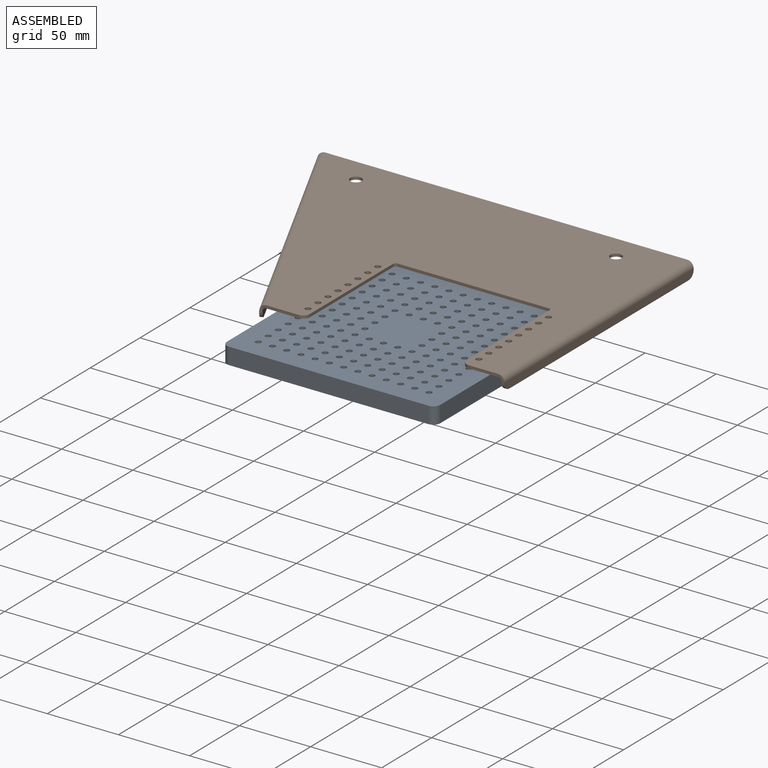
[diagram: assembled view]
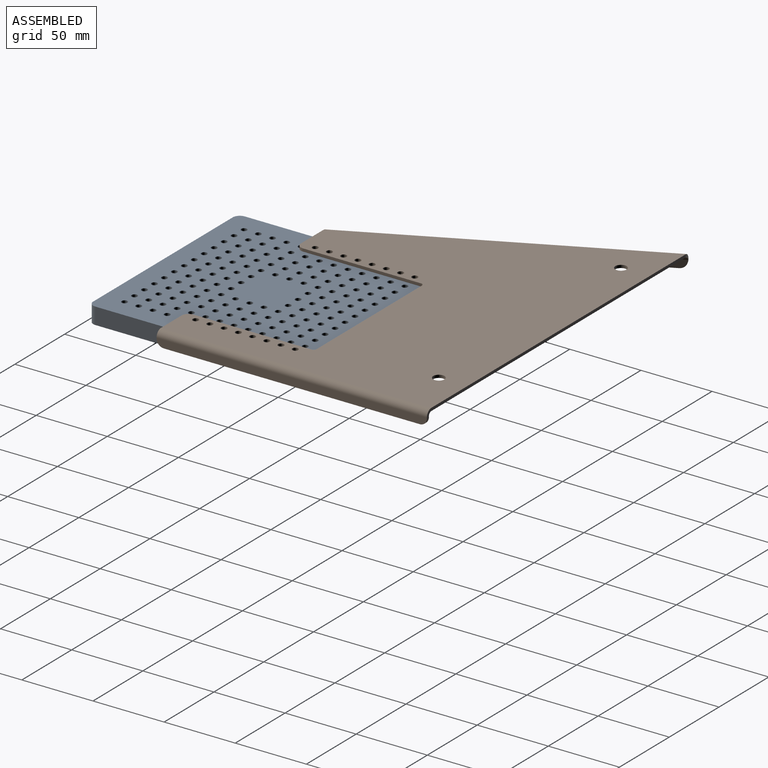
[diagram: assembled view, second angle]
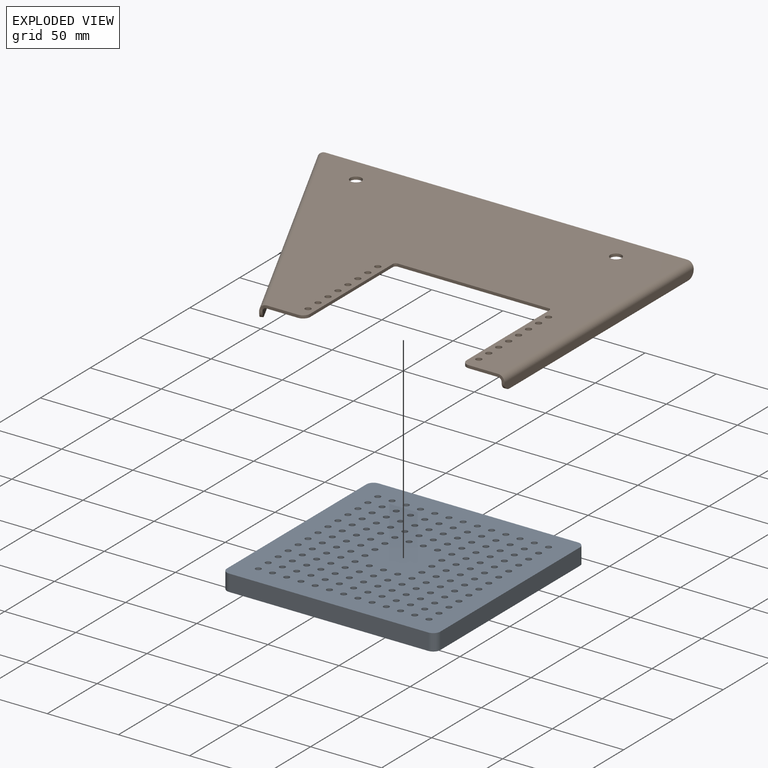
[diagram: exploded view]
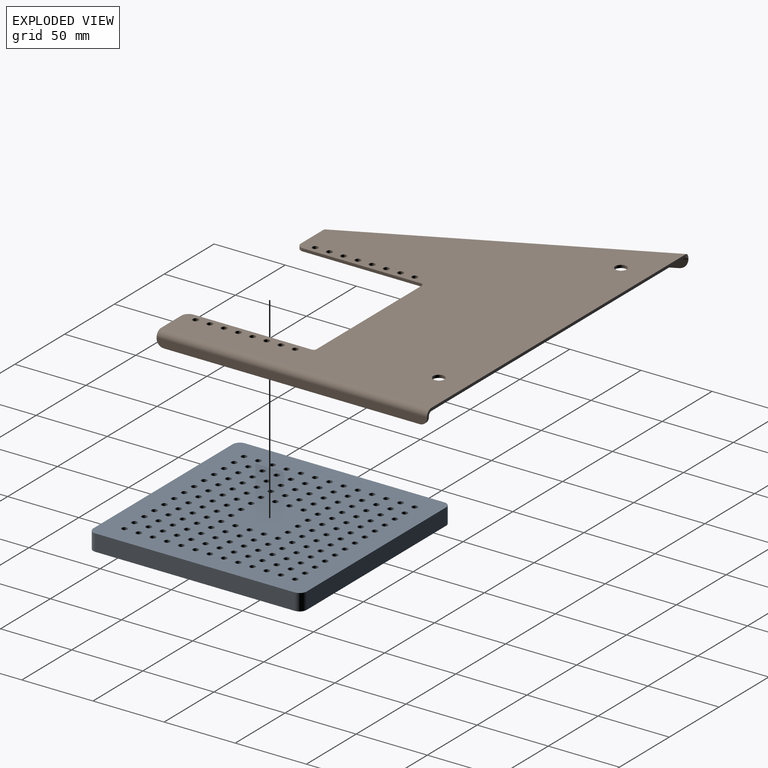
[diagram: exploded view, second angle]
ASSEMBLY  parts=2 mates=2
PART A: 170 faces, bbox 150x150x11.7 mm
  f0: plane 140x11.7mm, normal (0,1,0), area 1638mm2, adj f4,f5,f166,f169
  f1: plane 140x11.7mm, normal (-1,0,0), area 1638mm2, adj f4,f5,f166,f167
  f2: plane 140x11.7mm, normal (0,-1,0), area 1638mm2, adj f4,f5,f167,f168
  f3: plane 140x11.7mm, normal (1,0,0), area 1638mm2, adj f4,f5,f168,f169
  f4: plane 150x150mm, normal (0,0,1), area 20467.9mm2, adj f0,f1,f2,f3,f6,f7,f8,f9
  f5: plane 150x150mm, normal (0,0,-1), area 20467.9mm2, adj f0,f1,f2,f3,f6,f7,f8,f9
  f6: cylinder r=2mm len=11.7mm, axis (0,0,1), area 147mm2, adj f4,f5
  f7: cylinder r=2mm len=11.7mm, axis (0,0,1), area 147mm2, adj f4,f5
  f8: cylinder r=2mm len=11.7mm, axis (0,0,1), area 147mm2, adj f4,f5
  f9: cylinder r=2mm len=11.7mm, axis (0,0,1), area 147mm2, adj f4,f5
  f10: cylinder r=2mm len=11.7mm, axis (0,0,1), area 147mm2, adj f4,f5
  f11: cylinder r=2mm len=11.7mm, axis (0,0,1), area 147mm2, adj f4,f5
  f12: cylinder r=2mm len=11.7mm, axis (0,0,1), area 147mm2, adj f4,f5
  f13: cylinder r=2mm len=11.7mm, axis (0,0,1), area 147mm2, adj f4,f5
  f14: cylinder r=2mm len=11.7mm, axis (0,0,1), area 147mm2, adj f4,f5
  f15: cylinder r=2mm len=11.7mm, axis (0,0,1), area 147mm2, adj f4,f5
  f16: cylinder r=2mm len=11.7mm, axis (0,0,1), area 147mm2, adj f4,f5
  f17: cylinder r=2mm len=11.7mm, axis (0,0,1), area 147mm2, adj f4,f5
  f18: cylinder r=2mm len=11.7mm, axis (0,0,1), area 147mm2, adj f4,f5
  f19: cylinder r=2mm len=11.7mm, axis (0,0,1), area 147mm2, adj f4,f5
  f20: cylinder r=2mm len=11.7mm, axis (0,0,1), area 147mm2, adj f4,f5
  f21: cylinder r=2mm len=11.7mm, axis (0,0,1), area 147mm2, adj f4,f5
  f22: cylinder r=2mm len=11.7mm, axis (0,0,1), area 147mm2, adj f4,f5
  f23: cylinder r=2mm len=11.7mm, axis (0,0,1), area 147mm2, adj f4,f5
  f24: cylinder r=2mm len=11.7mm, axis (0,0,1), area 147mm2, adj f4,f5
  f25: cylinder r=2mm len=11.7mm, axis (0,0,1), area 147mm2, adj f4,f5
  f26: cylinder r=2mm len=11.7mm, axis (0,0,1), area 147mm2, adj f4,f5
  f27: cylinder r=2mm len=11.7mm, axis (0,0,1), area 147mm2, adj f4,f5
  f28: cylinder r=2mm len=11.7mm, axis (0,0,1), area 147mm2, adj f4,f5
  f29: cylinder r=2mm len=11.7mm, axis (0,0,1), area 147mm2, adj f4,f5
  f30: cylinder r=2mm len=11.7mm, axis (0,0,1), area 147mm2, adj f4,f5
  f31: cylinder r=2mm len=11.7mm, axis (0,0,1), area 147mm2, adj f4,f5
  f32: cylinder r=2mm len=11.7mm, axis (0,0,1), area 147mm2, adj f4,f5
  f33: cylinder r=2mm len=11.7mm, axis (0,0,1), area 147mm2, adj f4,f5
  f34: cylinder r=2mm len=11.7mm, axis (0,0,1), area 147mm2, adj f4,f5
  f35: cylinder r=2mm len=11.7mm, axis (0,0,1), area 147mm2, adj f4,f5
  f36: cylinder r=2mm len=11.7mm, axis (0,0,1), area 147mm2, adj f4,f5
  f37: cylinder r=2mm len=11.7mm, axis (0,0,1), area 147mm2, adj f4,f5
  f38: cylinder r=2mm len=11.7mm, axis (0,0,1), area 147mm2, adj f4,f5
  f39: cylinder r=2mm len=11.7mm, axis (0,0,1), area 147mm2, adj f4,f5
  f40: cylinder r=2mm len=11.7mm, axis (0,0,1), area 147mm2, adj f4,f5
  f41: cylinder r=2mm len=11.7mm, axis (0,0,1), area 147mm2, adj f4,f5
  f42: cylinder r=2mm len=11.7mm, axis (0,0,1), area 147mm2, adj f4,f5
  f43: cylinder r=2mm len=11.7mm, axis (0,0,1), area 147mm2, adj f4,f5
  f44: cylinder r=2mm len=11.7mm, axis (0,0,1), area 147mm2, adj f4,f5
  f45: cylinder r=2mm len=11.7mm, axis (0,0,1), area 147mm2, adj f4,f5
  f46: cylinder r=2mm len=11.7mm, axis (0,0,1), area 147mm2, adj f4,f5
  f47: cylinder r=2mm len=11.7mm, axis (0,0,1), area 147mm2, adj f4,f5
  f48: cylinder r=2mm len=11.7mm, axis (0,0,1), area 147mm2, adj f4,f5
  f49: cylinder r=2mm len=11.7mm, axis (0,0,1), area 147mm2, adj f4,f5
  f50: cylinder r=2mm len=11.7mm, axis (0,0,1), area 147mm2, adj f4,f5
  f51: cylinder r=2mm len=11.7mm, axis (0,0,1), area 147mm2, adj f4,f5
  f52: cylinder r=2mm len=11.7mm, axis (0,0,1), area 147mm2, adj f4,f5
  f53: cylinder r=2mm len=11.7mm, axis (0,0,1), area 147mm2, adj f4,f5
  f54: cylinder r=2mm len=11.7mm, axis (0,0,1), area 147mm2, adj f4,f5
  f55: cylinder r=2mm len=11.7mm, axis (0,0,1), area 147mm2, adj f4,f5
  f56: cylinder r=2mm len=11.7mm, axis (0,0,1), area 147mm2, adj f4,f5
  f57: cylinder r=2mm len=11.7mm, axis (0,0,1), area 147mm2, adj f4,f5
  f58: cylinder r=2mm len=11.7mm, axis (0,0,1), area 147mm2, adj f4,f5
  f59: cylinder r=2mm len=11.7mm, axis (0,0,1), area 147mm2, adj f4,f5
  f60: cylinder r=2mm len=11.7mm, axis (0,0,1), area 147mm2, adj f4,f5
  f61: cylinder r=2mm len=11.7mm, axis (0,0,1), area 147mm2, adj f4,f5
  f62: cylinder r=2mm len=11.7mm, axis (0,0,1), area 147mm2, adj f4,f5
  f63: cylinder r=2mm len=11.7mm, axis (0,0,1), area 147mm2, adj f4,f5
  f64: cylinder r=2mm len=11.7mm, axis (0,0,1), area 147mm2, adj f4,f5
  f65: cylinder r=2mm len=11.7mm, axis (0,0,1), area 147mm2, adj f4,f5
  f66: cylinder r=2mm len=11.7mm, axis (0,0,1), area 147mm2, adj f4,f5
  f67: cylinder r=2mm len=11.7mm, axis (0,0,1), area 147mm2, adj f4,f5
  f68: cylinder r=2mm len=11.7mm, axis (0,0,1), area 147mm2, adj f4,f5
  f69: cylinder r=2mm len=11.7mm, axis (0,0,1), area 147mm2, adj f4,f5
  f70: cylinder r=2mm len=11.7mm, axis (0,0,1), area 147mm2, adj f4,f5
  f71: cylinder r=2mm len=11.7mm, axis (0,0,1), area 147mm2, adj f4,f5
  f72: cylinder r=2mm len=11.7mm, axis (0,0,1), area 147mm2, adj f4,f5
  f73: cylinder r=2mm len=11.7mm, axis (0,0,1), area 147mm2, adj f4,f5
  f74: cylinder r=2mm len=11.7mm, axis (0,0,1), area 147mm2, adj f4,f5
  f75: cylinder r=2mm len=11.7mm, axis (0,0,1), area 147mm2, adj f4,f5
  f76: cylinder r=2mm len=11.7mm, axis (0,0,1), area 147mm2, adj f4,f5
  f77: cylinder r=2mm len=11.7mm, axis (0,0,1), area 147mm2, adj f4,f5
  f78: cylinder r=2mm len=11.7mm, axis (0,0,1), area 147mm2, adj f4,f5
  f79: cylinder r=2mm len=11.7mm, axis (0,0,1), area 147mm2, adj f4,f5
  f80: cylinder r=2mm len=11.7mm, axis (0,0,1), area 147mm2, adj f4,f5
  f81: cylinder r=2mm len=11.7mm, axis (0,0,1), area 147mm2, adj f4,f5
  f82: cylinder r=2mm len=11.7mm, axis (0,0,1), area 147mm2, adj f4,f5
  f83: cylinder r=2mm len=11.7mm, axis (0,0,1), area 147mm2, adj f4,f5
  f84: cylinder r=2mm len=11.7mm, axis (0,0,1), area 147mm2, adj f4,f5
  f85: cylinder r=2mm len=11.7mm, axis (0,0,1), area 147mm2, adj f4,f5
  f86: cylinder r=2mm len=11.7mm, axis (0,0,1), area 147mm2, adj f4,f5
  f87: cylinder r=2mm len=11.7mm, axis (0,0,1), area 147mm2, adj f4,f5
  f88: cylinder r=2mm len=11.7mm, axis (0,0,1), area 147mm2, adj f4,f5
  f89: cylinder r=2mm len=11.7mm, axis (0,0,1), area 147mm2, adj f4,f5
  f90: cylinder r=2mm len=11.7mm, axis (0,0,1), area 147mm2, adj f4,f5
  f91: cylinder r=2mm len=11.7mm, axis (0,0,1), area 147mm2, adj f4,f5
  f92: cylinder r=2mm len=11.7mm, axis (0,0,1), area 147mm2, adj f4,f5
  f93: cylinder r=2mm len=11.7mm, axis (0,0,1), area 147mm2, adj f4,f5
  f94: cylinder r=2mm len=11.7mm, axis (0,0,1), area 147mm2, adj f4,f5
  f95: cylinder r=2mm len=11.7mm, axis (0,0,1), area 147mm2, adj f4,f5
  f96: cylinder r=2mm len=11.7mm, axis (0,0,1), area 147mm2, adj f4,f5
  f97: cylinder r=2mm len=11.7mm, axis (0,0,1), area 147mm2, adj f4,f5
  f98: cylinder r=2mm len=11.7mm, axis (0,0,1), area 147mm2, adj f4,f5
  f99: cylinder r=2mm len=11.7mm, axis (0,0,1), area 147mm2, adj f4,f5
  f100: cylinder r=2mm len=11.7mm, axis (0,0,1), area 147mm2, adj f4,f5
  f101: cylinder r=2mm len=11.7mm, axis (0,0,1), area 147mm2, adj f4,f5
  f102: cylinder r=2mm len=11.7mm, axis (0,0,1), area 147mm2, adj f4,f5
  f103: cylinder r=2mm len=11.7mm, axis (0,0,1), area 147mm2, adj f4,f5
  f104: cylinder r=2mm len=11.7mm, axis (0,0,1), area 147mm2, adj f4,f5
  f105: cylinder r=2mm len=11.7mm, axis (0,0,1), area 147mm2, adj f4,f5
  f106: cylinder r=2mm len=11.7mm, axis (0,0,1), area 147mm2, adj f4,f5
  f107: cylinder r=2mm len=11.7mm, axis (0,0,1), area 147mm2, adj f4,f5
  f108: cylinder r=2mm len=11.7mm, axis (0,0,1), area 147mm2, adj f4,f5
  f109: cylinder r=2mm len=11.7mm, axis (0,0,1), area 147mm2, adj f4,f5
  f110: cylinder r=2mm len=11.7mm, axis (0,0,1), area 147mm2, adj f4,f5
  f111: cylinder r=2mm len=11.7mm, axis (0,0,1), area 147mm2, adj f4,f5
  f112: cylinder r=2mm len=11.7mm, axis (0,0,1), area 147mm2, adj f4,f5
  f113: cylinder r=2mm len=11.7mm, axis (0,0,1), area 147mm2, adj f4,f5
  f114: cylinder r=2mm len=11.7mm, axis (0,0,1), area 147mm2, adj f4,f5
  f115: cylinder r=2mm len=11.7mm, axis (0,0,1), area 147mm2, adj f4,f5
  f116: cylinder r=2mm len=11.7mm, axis (0,0,1), area 147mm2, adj f4,f5
  f117: cylinder r=2mm len=11.7mm, axis (0,0,1), area 147mm2, adj f4,f5
  f118: cylinder r=2mm len=11.7mm, axis (0,0,1), area 147mm2, adj f4,f5
  f119: cylinder r=2mm len=11.7mm, axis (0,0,1), area 147mm2, adj f4,f5
  f120: cylinder r=2mm len=11.7mm, axis (0,0,1), area 147mm2, adj f4,f5
  f121: cylinder r=2mm len=11.7mm, axis (0,0,1), area 147mm2, adj f4,f5
  f122: cylinder r=2mm len=11.7mm, axis (0,0,1), area 147mm2, adj f4,f5
  f123: cylinder r=2mm len=11.7mm, axis (0,0,1), area 147mm2, adj f4,f5
  f124: cylinder r=2mm len=11.7mm, axis (0,0,1), area 147mm2, adj f4,f5
  f125: cylinder r=2mm len=11.7mm, axis (0,0,1), area 147mm2, adj f4,f5
  f126: cylinder r=2mm len=11.7mm, axis (0,0,1), area 147mm2, adj f4,f5
  f127: cylinder r=2mm len=11.7mm, axis (0,0,1), area 147mm2, adj f4,f5
  f128: cylinder r=2mm len=11.7mm, axis (0,0,1), area 147mm2, adj f4,f5
  f129: cylinder r=2mm len=11.7mm, axis (0,0,1), area 147mm2, adj f4,f5
  f130: cylinder r=2mm len=11.7mm, axis (0,0,1), area 147mm2, adj f4,f5
  f131: cylinder r=2mm len=11.7mm, axis (0,0,1), area 147mm2, adj f4,f5
  f132: cylinder r=2mm len=11.7mm, axis (0,0,1), area 147mm2, adj f4,f5
  f133: cylinder r=2mm len=11.7mm, axis (0,0,1), area 147mm2, adj f4,f5
  f134: cylinder r=2mm len=11.7mm, axis (0,0,1), area 147mm2, adj f4,f5
  f135: cylinder r=2mm len=11.7mm, axis (0,0,1), area 147mm2, adj f4,f5
  f136: cylinder r=2mm len=11.7mm, axis (0,0,1), area 147mm2, adj f4,f5
  f137: cylinder r=2mm len=11.7mm, axis (0,0,1), area 147mm2, adj f4,f5
  f138: cylinder r=2mm len=11.7mm, axis (0,0,1), area 147mm2, adj f4,f5
  f139: cylinder r=2mm len=11.7mm, axis (0,0,1), area 147mm2, adj f4,f5
  f140: cylinder r=2mm len=11.7mm, axis (0,0,1), area 147mm2, adj f4,f5
  f141: cylinder r=2mm len=11.7mm, axis (0,0,1), area 147mm2, adj f4,f5
  f142: cylinder r=2mm len=11.7mm, axis (0,0,1), area 147mm2, adj f4,f5
  f143: cylinder r=2mm len=11.7mm, axis (0,0,1), area 147mm2, adj f4,f5
  f144: cylinder r=2mm len=11.7mm, axis (0,0,1), area 147mm2, adj f4,f5
  f145: cylinder r=2mm len=11.7mm, axis (0,0,1), area 147mm2, adj f4,f5
  f146: cylinder r=2mm len=11.7mm, axis (0,0,1), area 147mm2, adj f4,f5
  f147: cylinder r=2mm len=11.7mm, axis (0,0,1), area 147mm2, adj f4,f5
  f148: cylinder r=2mm len=11.7mm, axis (0,0,1), area 147mm2, adj f4,f5
  f149: cylinder r=2mm len=11.7mm, axis (0,0,1), area 147mm2, adj f4,f5
  f150: cylinder r=2mm len=11.7mm, axis (0,0,1), area 147mm2, adj f4,f5
  f151: cylinder r=2mm len=11.7mm, axis (0,0,1), area 147mm2, adj f4,f5
  f152: cylinder r=2mm len=11.7mm, axis (0,0,1), area 147mm2, adj f4,f5
  f153: cylinder r=2mm len=11.7mm, axis (0,0,1), area 147mm2, adj f4,f5
  f154: cylinder r=2mm len=11.7mm, axis (0,0,1), area 147mm2, adj f4,f5
  f155: cylinder r=2mm len=11.7mm, axis (0,0,1), area 147mm2, adj f4,f5
  f156: cylinder r=2mm len=11.7mm, axis (0,0,1), area 147mm2, adj f4,f5
  f157: cylinder r=2mm len=11.7mm, axis (0,0,1), area 147mm2, adj f4,f5
  f158: cylinder r=2mm len=11.7mm, axis (0,0,1), area 147mm2, adj f4,f5
  f159: cylinder r=2mm len=11.7mm, axis (0,0,1), area 147mm2, adj f4,f5
  f160: cylinder r=2mm len=11.7mm, axis (0,0,1), area 147mm2, adj f4,f5
  f161: cylinder r=2mm len=11.7mm, axis (0,0,1), area 147mm2, adj f4,f5
  f162: cylinder r=2mm len=11.7mm, axis (0,0,1), area 147mm2, adj f4,f5
  f163: cylinder r=2mm len=11.7mm, axis (0,0,1), area 147mm2, adj f4,f5
  f164: cylinder r=2mm len=11.7mm, axis (0,0,1), area 147mm2, adj f4,f5
  f165: cylinder r=2mm len=11.7mm, axis (0,0,1), area 147mm2, adj f4,f5
  f166: cylinder r=5mm len=11.7mm, axis (0,0,1), area 91.9mm2, adj f0,f1,f4,f5
  f167: cylinder r=5mm len=11.7mm, axis (0,0,-1), area 91.9mm2, adj f1,f2,f4,f5
  f168: cylinder r=5mm len=11.7mm, axis (0,0,1), area 91.9mm2, adj f2,f3,f4,f5
  f169: cylinder r=5mm len=11.7mm, axis (0,0,-1), area 91.9mm2, adj f0,f3,f4,f5
PART B: 52 faces, bbox 263.8x193.1x10 mm
  f0: plane 22.22x2mm, normal (0,-1,0), area 44.4mm2, adj f24,f25,f28,f48
  f1: plane 83x2mm, normal (1,0,0), area 166mm2, adj f24,f25,f26,f28
  f2: plane 106x2mm, normal (0,-1,0), area 212mm2, adj f24,f25,f26,f29
  f3: plane 83x2mm, normal (-1,0,0), area 166mm2, adj f24,f25,f27,f29
  f4: plane 20.5x2mm, normal (0,-1,0), area 41mm2, adj f24,f25,f27,f37
  f5: plane 254.72x2mm, normal (0,1,0), area 509.4mm2, adj f24,f25,f38,f49
  f6: cylinder r=2.05mm len=4.1mm, axis (0,0,1), area 25.8mm2, adj f24,f25
  f7: cylinder r=2.05mm len=4.1mm, axis (0,0,1), area 25.8mm2, adj f24,f25
  f8: cylinder r=2.05mm len=4.1mm, axis (0,0,1), area 25.8mm2, adj f24,f25
  f9: cylinder r=2.05mm len=4.1mm, axis (0,0,1), area 25.8mm2, adj f24,f25
  f10: cylinder r=2.05mm len=4.1mm, axis (0,0,1), area 25.8mm2, adj f24,f25
  f11: cylinder r=2.05mm len=4.1mm, axis (0,0,1), area 25.8mm2, adj f24,f25
  f12: cylinder r=2.05mm len=4.1mm, axis (0,0,1), area 25.8mm2, adj f24,f25
  f13: cylinder r=2.05mm len=4.1mm, axis (0,0,1), area 25.8mm2, adj f24,f25
  f14: cylinder r=2.05mm len=4.1mm, axis (0,0,1), area 25.8mm2, adj f24,f25
  f15: cylinder r=2.05mm len=4.1mm, axis (0,0,1), area 25.8mm2, adj f24,f25
  f16: cylinder r=2.05mm len=4.1mm, axis (0,0,1), area 25.8mm2, adj f24,f25
  f17: cylinder r=2.05mm len=4.1mm, axis (0,0,1), area 25.8mm2, adj f24,f25
  f18: cylinder r=2.05mm len=4.1mm, axis (0,0,1), area 25.8mm2, adj f24,f25
  f19: cylinder r=2.05mm len=4.1mm, axis (0,0,1), area 25.8mm2, adj f24,f25
  f20: cylinder r=2.05mm len=4.1mm, axis (0,0,1), area 25.8mm2, adj f24,f25
  f21: cylinder r=2.05mm len=4.1mm, axis (0,0,1), area 25.8mm2, adj f24,f25
  f22: cylinder r=4mm len=8mm, axis (0,0,1), area 50.3mm2, adj f24,f25
  f23: cylinder r=4mm len=8mm, axis (0,0,1), area 50.3mm2, adj f24,f25
  f24: plane 254.72x190mm, normal (0,0,1), area 29436.5mm2, adj f0,f1,f2,f3,f4,f5,f6,f7
  f25: plane 254.72x190mm, normal (0,0,-1), area 29436.5mm2, adj f0,f1,f2,f3,f4,f5,f6,f7
  f26: cylinder r=2mm len=2mm, axis (0,0,1), area 6.3mm2, adj f1,f2,f24,f25
  f27: cylinder r=5mm len=5mm, axis (0,0,-1), area 15.7mm2, adj f3,f4,f24,f25
  f28: cylinder r=5mm len=5mm, axis (0,0,1), area 15.7mm2, adj f0,f1,f24,f25
  f29: cylinder r=2mm len=2mm, axis (0,0,-1), area 6.3mm2, adj f2,f3,f24,f25
  f30: plane 2x0.5mm, normal (0,-1,0), area 1mm2, adj f33,f34,f36,f37
  f31: plane 180x2mm, normal (0,0,-1), area 360mm2, adj f33,f34,f35,f36
  f32: plane 2x0.5mm, normal (0,1,0), area 1mm2, adj f33,f34,f35,f38
  f33: plane 190x5.5mm, normal (1,0,0), area 1034.3mm2, adj f30,f31,f32,f35,f36,f39
  f34: plane 190x5.5mm, normal (-1,0,0), area 1034.3mm2, adj f30,f31,f32,f35,f36,f40
  f35: cylinder r=5mm len=5mm, axis (1,0,0), area 15.7mm2, adj f31,f32,f33,f34
  f36: cylinder r=5mm len=5mm, axis (-1,0,0), area 15.7mm2, adj f30,f31,f33,f34
  f37: plane 4.5x4.5mm, normal (0,-1,0), area 11mm2, adj f4,f30,f39,f40
  f38: plane 4.5x4.5mm, normal (0,1,0), area 11mm2, adj f5,f32,f39,f40
  f39: cylinder r=4.5mm len=190mm, axis (0,-1,0), area 1343mm2, adj f24,f33,f37,f38
  f40: cylinder r=2.5mm len=190mm, axis (0,-1,0), area 746.1mm2, adj f25,f34,f37,f38
  f41: plane 1.8x0.87mm, normal (-0.44,0.9,0), area 1mm2, adj f44,f45,f47,f49
  f42: plane 181.87x89.44mm, normal (0,0,-1), area 402.2mm2, adj f44,f45,f46,f47
  f43: plane 1.8x0.87mm, normal (0.44,-0.9,0), area 1mm2, adj f44,f45,f46,f48
  f44: plane 190x92mm, normal (-0.9,-0.44,0), area 1150.3mm2, adj f41,f42,f43,f46,f47,f50
  f45: plane 190x92mm, normal (0.9,0.44,0), area 1150.3mm2, adj f41,f42,f43,f46,f47,f51
  f46: cylinder r=5mm len=5.37mm, axis (-0.9,-0.44,0), area 15.7mm2, adj f42,f43,f44,f45
  f47: cylinder r=5mm len=5.37mm, axis (-0.9,-0.44,0), area 15.7mm2, adj f41,f42,f44,f45
  f48: bspline ~4.59x4.5mm, area 11.4mm2, adj f0,f43,f50,f51
  f49: bspline ~4.58x4.5mm, area 11.4mm2, adj f5,f41,f50,f51
  f50: cylinder r=4.5mm len=193.05mm, axis (0.44,-0.9,0), area 1490.1mm2, adj f24,f44,f48,f49
  f51: cylinder r=2.5mm len=192.18mm, axis (0.44,-0.9,0), area 827.9mm2, adj f25,f45,f48,f49
PLACE A t=(17.32,-138.69,-152.36)mm
PLACE B t=(-29.68,-63.69,-150.51)mm
MATE cylindrical B.f21 <-> A.f32  axis (0,0,1) through (-42.68,-78.69,-144.51)mm
MATE cylindrical B.f20 <-> A.f6  axis (0,0,-1) through (77.32,-78.69,-146.51)mm
